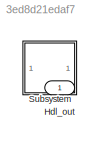
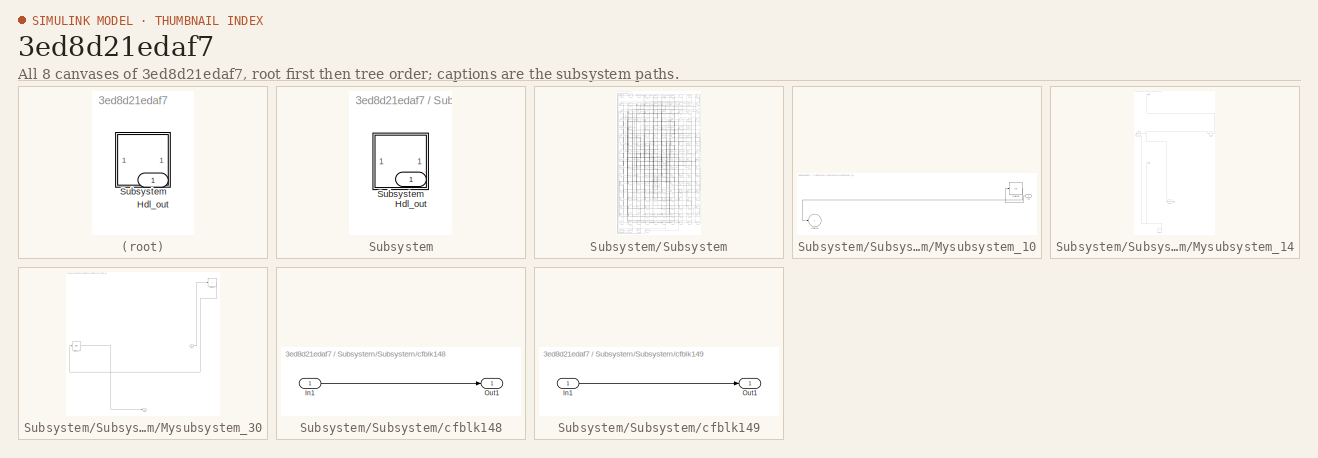
[diagram: thumbnail index - all 8 canvases of the model, root first then tree order]
MODEL slx_3ed8d21edaf7
KIND model
CONFIG AbsTol = auto
CONFIG EnableMultiTasking = off
CONFIG FixedStep = auto
CONFIG MaxStep = auto
CONFIG MinStep = auto
CONFIG RelTol = 1e-3
CONFIG SampleTimeConstraint = Unconstrained
CONFIG SolverName = VariableStepAuto
CONFIG StartTime = 0.0
CONFIG StopTime = 10.0
BLOCK [Outport] Hdl_out
  OutDataTypeStr = uint8
BLOCK [SubSystem] Subsystem
BLOCK [Outport] Subsystem/Hdl_out
  OutDataTypeStr = uint8
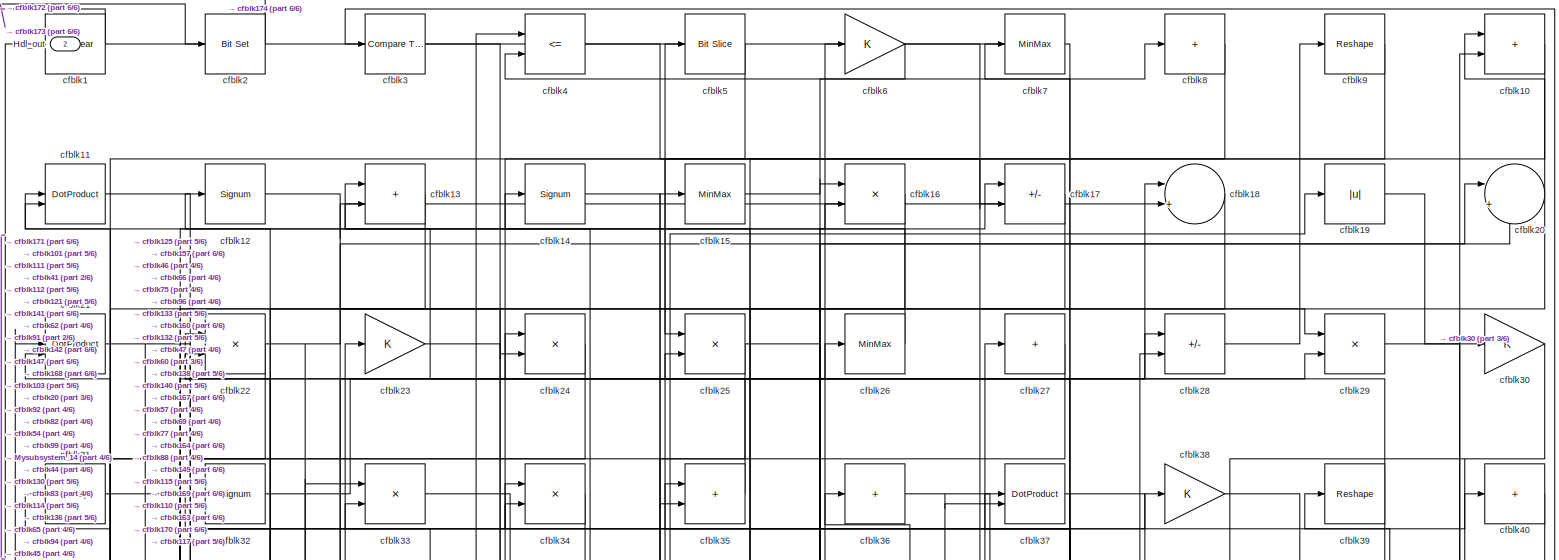
[diagram: Subsystem/Subsystem - part 1/6, full width, top band]
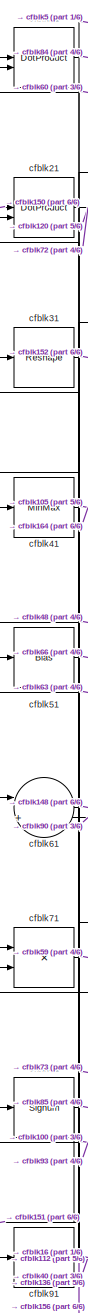
[diagram: Subsystem/Subsystem - part 2/6, top left region]
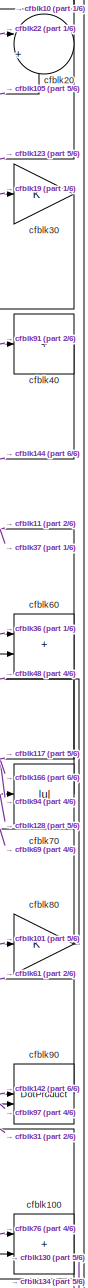
[diagram: Subsystem/Subsystem - part 3/6, top right region]
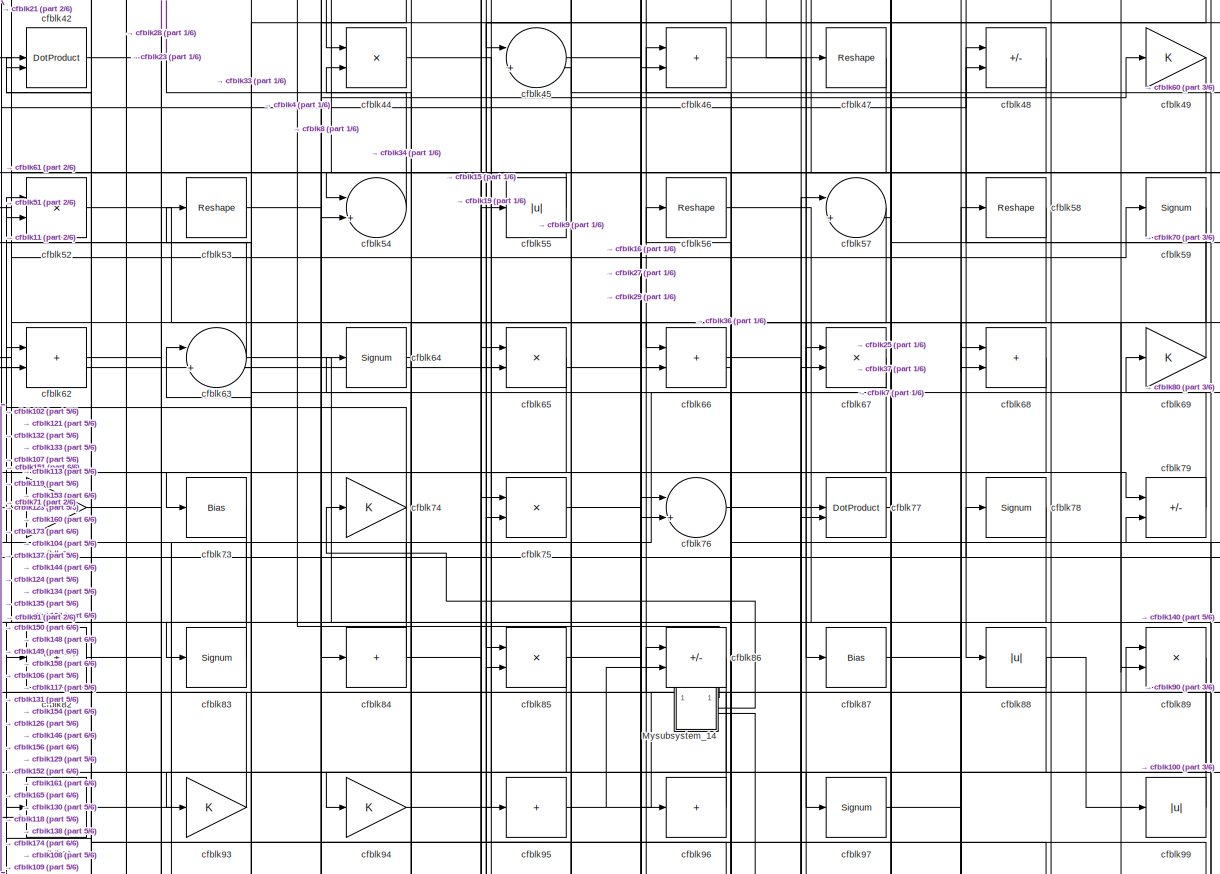
[diagram: Subsystem/Subsystem - part 4/6, full width, middle band]
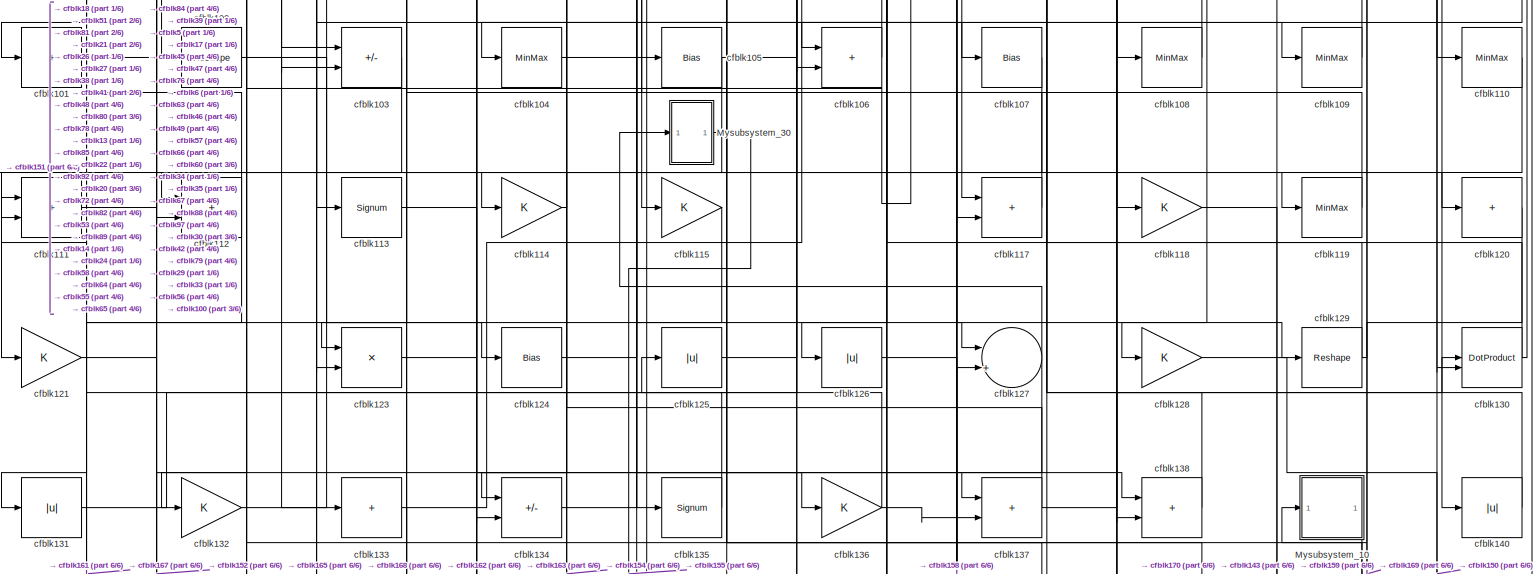
[diagram: Subsystem/Subsystem - part 5/6, full width, bottom band]
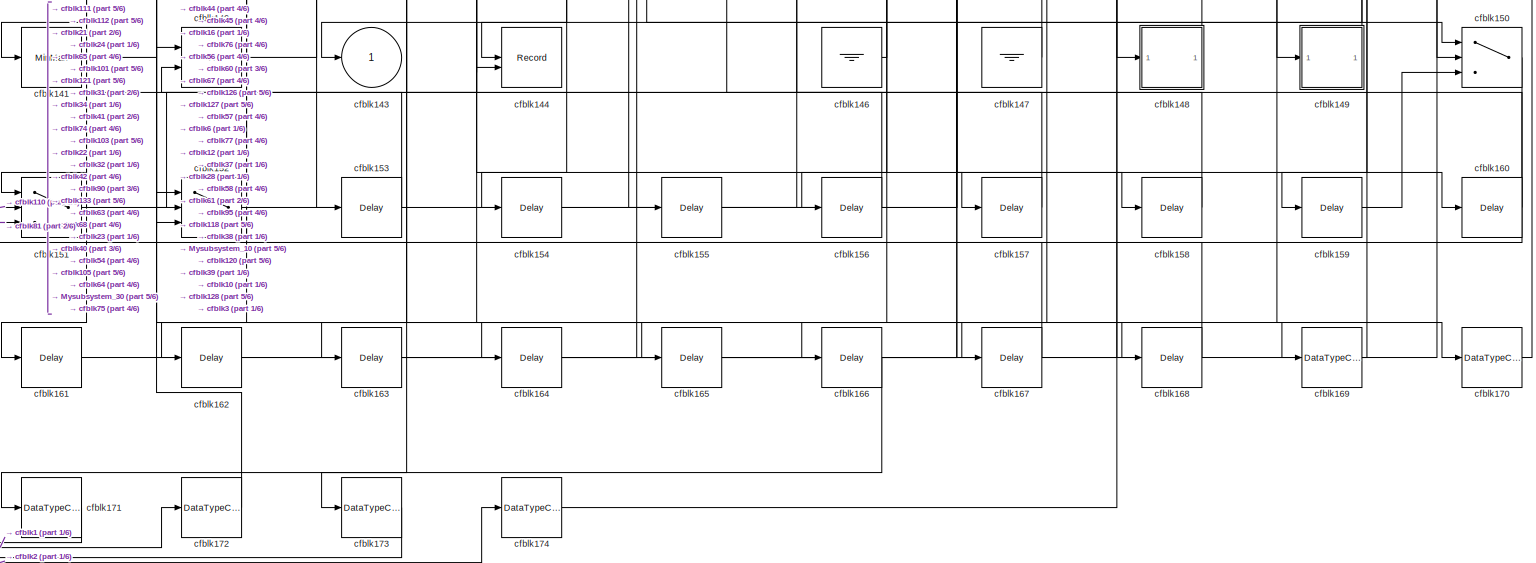
[diagram: Subsystem/Subsystem - part 6/6, full width, bottom band]
BLOCK [SubSystem] Subsystem/Subsystem
BLOCK [Outport] Subsystem/Subsystem/Hdl_out
  OutDataTypeStr = uint8
  Port = 2
BLOCK [SubSystem] Subsystem/Subsystem/Mysubsystem_10
  RTWFcnName = Mysubsystem_10
  RTWFcnNameOpts = User specified
  RTWFileNameOpts = Use function name
  RTWSystemCode = Reusable function
  TreatAsAtomicUnit = on
BLOCK [Inport] Subsystem/Subsystem/Mysubsystem_10/In1
BLOCK [Abs] Subsystem/Subsystem/Mysubsystem_10/cfblk139
  SaturateOnIntegerOverflow = off
BLOCK [Outport] Subsystem/Subsystem/Mysubsystem_10/cfblk143
  VectorParamsAs1DForOutWhenUnconnected = off
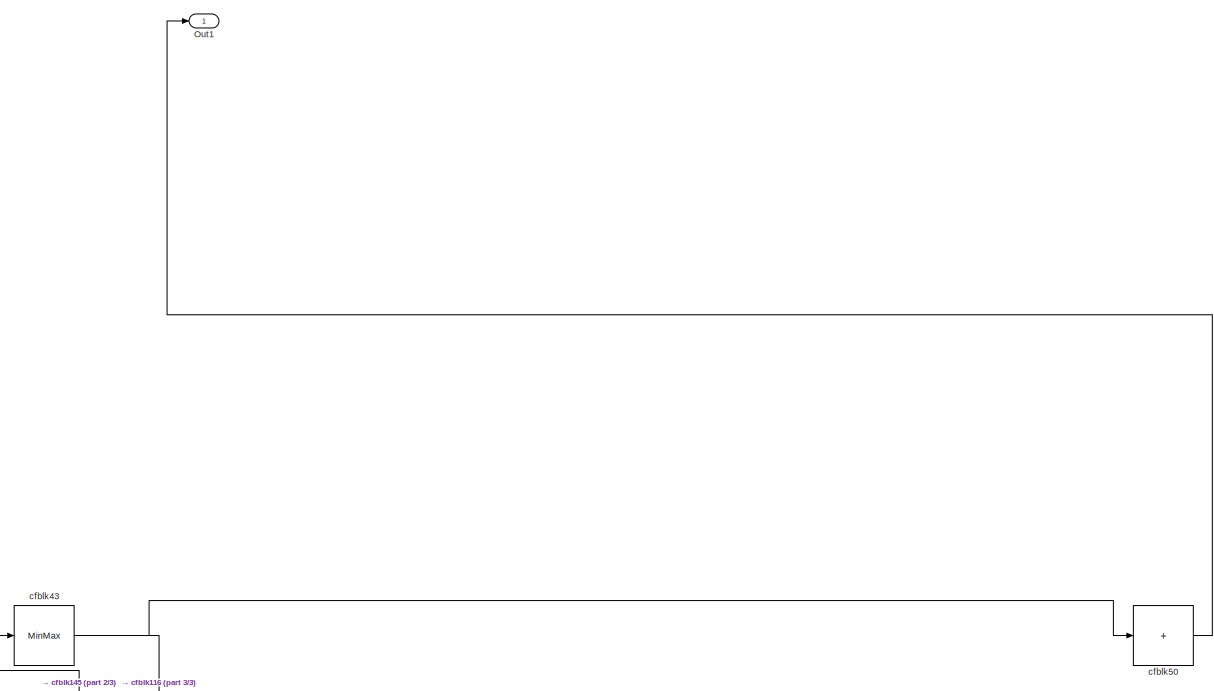
[diagram: Subsystem/Subsystem/Mysubsystem_14 - part 1/3, full width, top band]
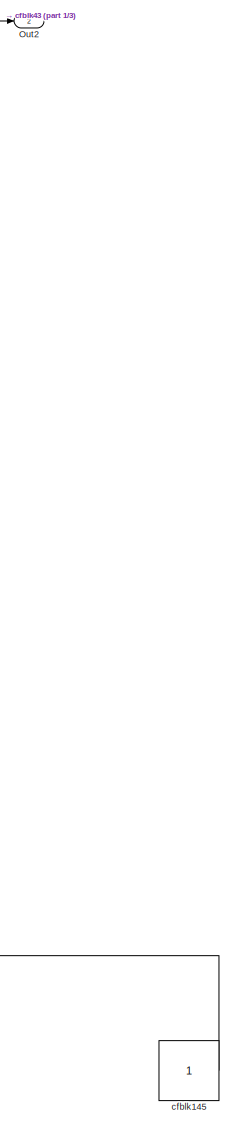
[diagram: Subsystem/Subsystem/Mysubsystem_14 - part 2/3, bottom left region]
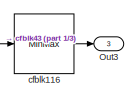
[diagram: Subsystem/Subsystem/Mysubsystem_14 - part 3/3, bottom center region]
BLOCK [SubSystem] Subsystem/Subsystem/Mysubsystem_14
  RTWFcnName = Mysubsystem_14
  RTWFcnNameOpts = User specified
  RTWFileNameOpts = Use function name
  RTWSystemCode = Reusable function
  TreatAsAtomicUnit = on
BLOCK [Outport] Subsystem/Subsystem/Mysubsystem_14/Out1
BLOCK [Outport] Subsystem/Subsystem/Mysubsystem_14/Out2
  Port = 2
BLOCK [Outport] Subsystem/Subsystem/Mysubsystem_14/Out3
  Port = 3
BLOCK [MinMax] Subsystem/Subsystem/Mysubsystem_14/cfblk116
BLOCK [Constant] Subsystem/Subsystem/Mysubsystem_14/cfblk145
  SampleTime = -1
BLOCK [MinMax] Subsystem/Subsystem/Mysubsystem_14/cfblk43
BLOCK [Sum] Subsystem/Subsystem/Mysubsystem_14/cfblk50
  IconShape = rectangular
  Inputs = +
BLOCK [SubSystem] Subsystem/Subsystem/Mysubsystem_30
  RTWFcnName = Mysubsystem_30
  RTWFcnNameOpts = User specified
  RTWFileNameOpts = Use function name
  RTWSystemCode = Reusable function
  TreatAsAtomicUnit = on
BLOCK [Inport] Subsystem/Subsystem/Mysubsystem_30/In1
BLOCK [Outport] Subsystem/Subsystem/Mysubsystem_30/Out1
BLOCK [Bias] Subsystem/Subsystem/Mysubsystem_30/cfblk122
  Bias = 0.0
  SaturateOnIntegerOverflow = off
BLOCK [Sum] Subsystem/Subsystem/Mysubsystem_30/cfblk98
  IconShape = rectangular
  Inputs = +
BLOCK [Reference] Subsystem/Subsystem/cfblk1  REF=simulink/Logic and Bit
Operations/Bit Clear
  LibrarySourceBlock = hdlsllib/Logic and Bit\nOperations/Bit Clear
  SourceBlock = simulink/Logic and Bit\nOperations/Bit Clear
  SourceType = Bit Clear
BLOCK [Sum] Subsystem/Subsystem/cfblk10
  IconShape = rectangular
  OutDataTypeStr = uint8
BLOCK [Sum] Subsystem/Subsystem/cfblk100
  IconShape = rectangular
  OutDataTypeStr = uint8
BLOCK [Sum] Subsystem/Subsystem/cfblk101
  IconShape = rectangular
  Inputs = +
  OutDataTypeStr = uint8
BLOCK [Reshape] Subsystem/Subsystem/cfblk102
BLOCK [Sum] Subsystem/Subsystem/cfblk103
  IconShape = rectangular
  Inputs = +-
  OutDataTypeStr = uint8
BLOCK [MinMax] Subsystem/Subsystem/cfblk104
  OutDataTypeStr = uint8
BLOCK [Bias] Subsystem/Subsystem/cfblk105
  Bias = 0.0
  SaturateOnIntegerOverflow = off
BLOCK [Sum] Subsystem/Subsystem/cfblk106
  IconShape = rectangular
  OutDataTypeStr = uint8
BLOCK [Bias] Subsystem/Subsystem/cfblk107
  Bias = 0.0
  SaturateOnIntegerOverflow = off
BLOCK [MinMax] Subsystem/Subsystem/cfblk108
  OutDataTypeStr = uint8
BLOCK [MinMax] Subsystem/Subsystem/cfblk109
  OutDataTypeStr = uint8
BLOCK [DotProduct] Subsystem/Subsystem/cfblk11
  OutDataTypeStr = uint8
BLOCK [MinMax] Subsystem/Subsystem/cfblk110
  OutDataTypeStr = uint8
BLOCK [Sum] Subsystem/Subsystem/cfblk111
  IconShape = rectangular
  OutDataTypeStr = uint8
BLOCK [Sum] Subsystem/Subsystem/cfblk112
  IconShape = rectangular
  OutDataTypeStr = uint8
BLOCK [Signum] Subsystem/Subsystem/cfblk113
BLOCK [Gain] Subsystem/Subsystem/cfblk114
  OutDataTypeStr = uint8
BLOCK [Gain] Subsystem/Subsystem/cfblk115
  OutDataTypeStr = uint8
BLOCK [Sum] Subsystem/Subsystem/cfblk117
  IconShape = rectangular
  OutDataTypeStr = uint8
BLOCK [Gain] Subsystem/Subsystem/cfblk118
  OutDataTypeStr = uint8
BLOCK [MinMax] Subsystem/Subsystem/cfblk119
  OutDataTypeStr = uint8
BLOCK [Signum] Subsystem/Subsystem/cfblk12
BLOCK [Sum] Subsystem/Subsystem/cfblk120
  IconShape = rectangular
  Inputs = +
  OutDataTypeStr = uint8
BLOCK [Gain] Subsystem/Subsystem/cfblk121
  OutDataTypeStr = uint8
BLOCK [Product] Subsystem/Subsystem/cfblk123
  Inputs = */
  OutDataTypeStr = uint8
  RndMeth = Zero
  SaturateOnIntegerOverflow = on
BLOCK [Bias] Subsystem/Subsystem/cfblk124
  Bias = 0.0
  SaturateOnIntegerOverflow = off
BLOCK [Abs] Subsystem/Subsystem/cfblk125
  OutDataTypeStr = uint8
  SaturateOnIntegerOverflow = off
BLOCK [Abs] Subsystem/Subsystem/cfblk126
  OutDataTypeStr = uint8
  SaturateOnIntegerOverflow = off
BLOCK [Sum] Subsystem/Subsystem/cfblk127
  Inputs = |++
  OutDataTypeStr = uint8
BLOCK [Gain] Subsystem/Subsystem/cfblk128
  OutDataTypeStr = uint8
BLOCK [Reshape] Subsystem/Subsystem/cfblk129
BLOCK [Sum] Subsystem/Subsystem/cfblk13
  IconShape = rectangular
  OutDataTypeStr = uint8
BLOCK [DotProduct] Subsystem/Subsystem/cfblk130
  OutDataTypeStr = uint8
BLOCK [Abs] Subsystem/Subsystem/cfblk131
  OutDataTypeStr = uint8
  SaturateOnIntegerOverflow = off
BLOCK [Gain] Subsystem/Subsystem/cfblk132
  OutDataTypeStr = uint8
BLOCK [Sum] Subsystem/Subsystem/cfblk133
  IconShape = rectangular
  Inputs = +
  OutDataTypeStr = uint8
BLOCK [Sum] Subsystem/Subsystem/cfblk134
  IconShape = rectangular
  Inputs = +-
  OutDataTypeStr = uint8
BLOCK [Signum] Subsystem/Subsystem/cfblk135
BLOCK [Gain] Subsystem/Subsystem/cfblk136
  OutDataTypeStr = uint8
BLOCK [Sum] Subsystem/Subsystem/cfblk137
  IconShape = rectangular
  OutDataTypeStr = uint8
BLOCK [Sum] Subsystem/Subsystem/cfblk138
  IconShape = rectangular
  OutDataTypeStr = uint8
BLOCK [Signum] Subsystem/Subsystem/cfblk14
BLOCK [Abs] Subsystem/Subsystem/cfblk140
  OutDataTypeStr = uint8
  SaturateOnIntegerOverflow = off
BLOCK [MinMax] Subsystem/Subsystem/cfblk141
  OutDataTypeStr = uint8
BLOCK [Product] Subsystem/Subsystem/cfblk142
  Inputs = */
  OutDataTypeStr = uint8
  RndMeth = Zero
  SaturateOnIntegerOverflow = on
BLOCK [Outport] Subsystem/Subsystem/cfblk143
  OutDataTypeStr = uint8
  VectorParamsAs1DForOutWhenUnconnected = off
BLOCK [Record] Subsystem/Subsystem/cfblk144
  CompatibilityTag = XY
  FileSettingsInternal = {"entries":[{"content":{"excelSettings":{"content":{},"type":"Streamout.ExcelSettings"}},"type":"Streamout.FileSettingStorage","uuid":""}],"packageUris":["http:\/\/schema.mathworks.com\/mf0\/streamout_blocks\/R2020a"],"version":"1.0"}
  Layout = [1 1]
  SignalsInternal = {"entries":[{"content":{"signals":[{"content":{"blockPath":[],"dimensions":[1],"domain":"","lineColor":"#a2142f","plots":[1],"port":1,"signalID":30834,"signalName":"cfblk64"},"type":"RecordBlkView.Signal","uuid":""},{"content":{"blockPath":[],"dimensions":[1],"domain":"","lineColor":"#139fff","plots":[1],"port":2,"signalID":30837,"signalName":"cfblk40"},"type":"RecordBlkView.Signal","uuid":""}]},"...<+142ch>
  VisualizationBindings = {"xyplotplugin":{"info":[{"series":[{"bindingParametersList":[{"parameter":"X-Axis","signalID":30834,"signalName":"cfblk64"},{"parameter":"Y-Axis","signalID":30837,"signalName":"cfblk40"}],"seriesID":6663}],"subplotID":1}]}}
  st = -1
BLOCK [Ground] Subsystem/Subsystem/cfblk146
BLOCK [Ground] Subsystem/Subsystem/cfblk147
BLOCK [SubSystem] Subsystem/Subsystem/cfblk148
  LibrarySourceBlock = hdlsllib/Ports &\nSubsystems/Subsystem
BLOCK [Inport] Subsystem/Subsystem/cfblk148/In1
BLOCK [Outport] Subsystem/Subsystem/cfblk148/Out1
BLOCK [SubSystem] Subsystem/Subsystem/cfblk149
  LibrarySourceBlock = hdlsllib/Ports &\nSubsystems/Subsystem
BLOCK [Inport] Subsystem/Subsystem/cfblk149/In1
BLOCK [Outport] Subsystem/Subsystem/cfblk149/Out1
BLOCK [MinMax] Subsystem/Subsystem/cfblk15
  OutDataTypeStr = uint8
BLOCK [Switch] Subsystem/Subsystem/cfblk150
  InputSameDT = off
  OutDataTypeStr = uint8
  SaturateOnIntegerOverflow = off
BLOCK [Switch] Subsystem/Subsystem/cfblk151
  InputSameDT = off
  OutDataTypeStr = uint8
  SaturateOnIntegerOverflow = off
BLOCK [Switch] Subsystem/Subsystem/cfblk152
  InputSameDT = off
  OutDataTypeStr = uint8
  SaturateOnIntegerOverflow = off
BLOCK [Delay] Subsystem/Subsystem/cfblk153
  InputPortMap = u0
  SampleTime = 1
BLOCK [Delay] Subsystem/Subsystem/cfblk154
  InputPortMap = u0
  SampleTime = 1
BLOCK [Delay] Subsystem/Subsystem/cfblk155
  InputPortMap = u0
  SampleTime = 1
BLOCK [Delay] Subsystem/Subsystem/cfblk156
  InputPortMap = u0
  SampleTime = 1
BLOCK [Delay] Subsystem/Subsystem/cfblk157
  InputPortMap = u0
  SampleTime = 1
BLOCK [Delay] Subsystem/Subsystem/cfblk158
  InputPortMap = u0
  SampleTime = 1
BLOCK [Delay] Subsystem/Subsystem/cfblk159
  InputPortMap = u0
  SampleTime = 1
BLOCK [Product] Subsystem/Subsystem/cfblk16
  Inputs = */
  OutDataTypeStr = uint8
  RndMeth = Zero
  SaturateOnIntegerOverflow = on
BLOCK [Delay] Subsystem/Subsystem/cfblk160
  InputPortMap = u0
  SampleTime = 1
BLOCK [Delay] Subsystem/Subsystem/cfblk161
  InputPortMap = u0
  SampleTime = 1
BLOCK [Delay] Subsystem/Subsystem/cfblk162
  InputPortMap = u0
  SampleTime = 1
BLOCK [Delay] Subsystem/Subsystem/cfblk163
  InputPortMap = u0
  SampleTime = 1
BLOCK [Delay] Subsystem/Subsystem/cfblk164
  InputPortMap = u0
  SampleTime = 1
BLOCK [Delay] Subsystem/Subsystem/cfblk165
  InputPortMap = u0
  SampleTime = 1
BLOCK [Delay] Subsystem/Subsystem/cfblk166
  InputPortMap = u0
  SampleTime = 1
BLOCK [Delay] Subsystem/Subsystem/cfblk167
  InputPortMap = u0
  SampleTime = 1
BLOCK [Delay] Subsystem/Subsystem/cfblk168
  InputPortMap = u0
  SampleTime = 1
BLOCK [DataTypeConversion] Subsystem/Subsystem/cfblk169
  OutDataTypeStr = uint8
  RndMeth = Floor
  SaturateOnIntegerOverflow = off
BLOCK [Sum] Subsystem/Subsystem/cfblk17
  IconShape = rectangular
  Inputs = +-
  OutDataTypeStr = uint8
BLOCK [DataTypeConversion] Subsystem/Subsystem/cfblk170
  OutDataTypeStr = uint8
  RndMeth = Floor
  SaturateOnIntegerOverflow = off
BLOCK [DataTypeConversion] Subsystem/Subsystem/cfblk171
  OutDataTypeStr = uint8
  RndMeth = Floor
  SaturateOnIntegerOverflow = off
BLOCK [DataTypeConversion] Subsystem/Subsystem/cfblk172
  OutDataTypeStr = uint8
  RndMeth = Floor
  SaturateOnIntegerOverflow = off
BLOCK [DataTypeConversion] Subsystem/Subsystem/cfblk173
  OutDataTypeStr = uint8
  RndMeth = Floor
  SaturateOnIntegerOverflow = off
BLOCK [DataTypeConversion] Subsystem/Subsystem/cfblk174
  OutDataTypeStr = uint8
  RndMeth = Floor
  SaturateOnIntegerOverflow = off
BLOCK [Sum] Subsystem/Subsystem/cfblk18
  Inputs = |++
  OutDataTypeStr = uint8
BLOCK [Abs] Subsystem/Subsystem/cfblk19
  OutDataTypeStr = uint8
  SaturateOnIntegerOverflow = off
BLOCK [Reference] Subsystem/Subsystem/cfblk2  REF=simulink/Logic and Bit
Operations/Bit Set
  LibrarySourceBlock = hdlsllib/Logic and Bit\nOperations/Bit Set
  SourceBlock = simulink/Logic and Bit\nOperations/Bit Set
  SourceType = Bit Set
BLOCK [Sum] Subsystem/Subsystem/cfblk20
  Inputs = |++
  OutDataTypeStr = uint8
BLOCK [DotProduct] Subsystem/Subsystem/cfblk21
  OutDataTypeStr = uint8
BLOCK [Product] Subsystem/Subsystem/cfblk22
  Inputs = */
  OutDataTypeStr = uint8
  RndMeth = Zero
  SaturateOnIntegerOverflow = on
BLOCK [Gain] Subsystem/Subsystem/cfblk23
  OutDataTypeStr = uint8
BLOCK [Product] Subsystem/Subsystem/cfblk24
  Inputs = */
  OutDataTypeStr = uint8
  RndMeth = Zero
  SaturateOnIntegerOverflow = on
BLOCK [Product] Subsystem/Subsystem/cfblk25
  Inputs = */
  OutDataTypeStr = uint8
  RndMeth = Zero
  SaturateOnIntegerOverflow = on
BLOCK [MinMax] Subsystem/Subsystem/cfblk26
  OutDataTypeStr = uint8
BLOCK [Sum] Subsystem/Subsystem/cfblk27
  IconShape = rectangular
  Inputs = +
  OutDataTypeStr = uint8
BLOCK [Sum] Subsystem/Subsystem/cfblk28
  IconShape = rectangular
  Inputs = +-
  OutDataTypeStr = uint8
BLOCK [Product] Subsystem/Subsystem/cfblk29
  Inputs = */
  OutDataTypeStr = uint8
  RndMeth = Zero
  SaturateOnIntegerOverflow = on
BLOCK [Reference] Subsystem/Subsystem/cfblk3  REF=hdlsllib/Logic and Bit
Operations/Compare
To Zero
  SourceBlock = hdlsllib/Logic and Bit\nOperations/Compare\nTo Zero
  SourceType = Compare To Zero
BLOCK [Gain] Subsystem/Subsystem/cfblk30
  OutDataTypeStr = uint8
BLOCK [Reshape] Subsystem/Subsystem/cfblk31
BLOCK [Signum] Subsystem/Subsystem/cfblk32
BLOCK [Product] Subsystem/Subsystem/cfblk33
  Inputs = */
  OutDataTypeStr = uint8
  RndMeth = Zero
  SaturateOnIntegerOverflow = on
BLOCK [Product] Subsystem/Subsystem/cfblk34
  Inputs = */
  OutDataTypeStr = uint8
  RndMeth = Zero
  SaturateOnIntegerOverflow = on
BLOCK [Sum] Subsystem/Subsystem/cfblk35
  IconShape = rectangular
  OutDataTypeStr = uint8
BLOCK [Sum] Subsystem/Subsystem/cfblk36
  IconShape = rectangular
  Inputs = +
  OutDataTypeStr = uint8
BLOCK [DotProduct] Subsystem/Subsystem/cfblk37
  OutDataTypeStr = uint8
BLOCK [Gain] Subsystem/Subsystem/cfblk38
  OutDataTypeStr = uint8
BLOCK [Reshape] Subsystem/Subsystem/cfblk39
BLOCK [RelationalOperator] Subsystem/Subsystem/cfblk4
  InputSameDT = off
  Operator = <=
  OutDataTypeStr = boolean
BLOCK [Sum] Subsystem/Subsystem/cfblk40
  IconShape = rectangular
  Inputs = +
  OutDataTypeStr = uint8
BLOCK [MinMax] Subsystem/Subsystem/cfblk41
  OutDataTypeStr = uint8
BLOCK [DotProduct] Subsystem/Subsystem/cfblk42
  OutDataTypeStr = uint8
BLOCK [Product] Subsystem/Subsystem/cfblk44
  Inputs = */
  OutDataTypeStr = uint8
  RndMeth = Zero
  SaturateOnIntegerOverflow = on
BLOCK [Sum] Subsystem/Subsystem/cfblk45
  Inputs = |++
  OutDataTypeStr = uint8
BLOCK [Sum] Subsystem/Subsystem/cfblk46
  IconShape = rectangular
  OutDataTypeStr = uint8
BLOCK [Reshape] Subsystem/Subsystem/cfblk47
BLOCK [Sum] Subsystem/Subsystem/cfblk48
  IconShape = rectangular
  Inputs = +-
  OutDataTypeStr = uint8
BLOCK [Gain] Subsystem/Subsystem/cfblk49
  OutDataTypeStr = uint8
BLOCK [Reference] Subsystem/Subsystem/cfblk5  REF=hdlsllib/Logic and Bit
Operations/Bit Slice
  SourceBlock = hdlsllib/Logic and Bit\nOperations/Bit Slice
  SourceType = Bit Slice
BLOCK [Bias] Subsystem/Subsystem/cfblk51
  Bias = 0.0
  SaturateOnIntegerOverflow = off
BLOCK [Product] Subsystem/Subsystem/cfblk52
  Inputs = */
  OutDataTypeStr = uint8
  RndMeth = Zero
  SaturateOnIntegerOverflow = on
BLOCK [Reshape] Subsystem/Subsystem/cfblk53
BLOCK [Sum] Subsystem/Subsystem/cfblk54
  Inputs = |++
  OutDataTypeStr = uint8
BLOCK [Abs] Subsystem/Subsystem/cfblk55
  OutDataTypeStr = uint8
  SaturateOnIntegerOverflow = off
BLOCK [Reshape] Subsystem/Subsystem/cfblk56
BLOCK [Sum] Subsystem/Subsystem/cfblk57
  Inputs = |++
  OutDataTypeStr = uint8
BLOCK [Reshape] Subsystem/Subsystem/cfblk58
BLOCK [Signum] Subsystem/Subsystem/cfblk59
BLOCK [Gain] Subsystem/Subsystem/cfblk6
  OutDataTypeStr = uint8
BLOCK [Sum] Subsystem/Subsystem/cfblk60
  IconShape = rectangular
  OutDataTypeStr = uint8
BLOCK [Sum] Subsystem/Subsystem/cfblk61
  Inputs = |++
  OutDataTypeStr = uint8
BLOCK [Sum] Subsystem/Subsystem/cfblk62
  IconShape = rectangular
  OutDataTypeStr = uint8
BLOCK [Sum] Subsystem/Subsystem/cfblk63
  Inputs = |++
  OutDataTypeStr = uint8
BLOCK [Signum] Subsystem/Subsystem/cfblk64
BLOCK [Product] Subsystem/Subsystem/cfblk65
  Inputs = */
  OutDataTypeStr = uint8
  RndMeth = Zero
  SaturateOnIntegerOverflow = on
BLOCK [Sum] Subsystem/Subsystem/cfblk66
  IconShape = rectangular
  OutDataTypeStr = uint8
BLOCK [Product] Subsystem/Subsystem/cfblk67
  Inputs = */
  OutDataTypeStr = uint8
  RndMeth = Zero
  SaturateOnIntegerOverflow = on
BLOCK [Sum] Subsystem/Subsystem/cfblk68
  IconShape = rectangular
  OutDataTypeStr = uint8
BLOCK [Gain] Subsystem/Subsystem/cfblk69
  OutDataTypeStr = uint8
BLOCK [MinMax] Subsystem/Subsystem/cfblk7
  OutDataTypeStr = uint8
BLOCK [Abs] Subsystem/Subsystem/cfblk70
  OutDataTypeStr = uint8
  SaturateOnIntegerOverflow = off
BLOCK [Product] Subsystem/Subsystem/cfblk71
  Inputs = */
  OutDataTypeStr = uint8
  RndMeth = Zero
  SaturateOnIntegerOverflow = on
BLOCK [Gain] Subsystem/Subsystem/cfblk72
  OutDataTypeStr = uint8
BLOCK [Bias] Subsystem/Subsystem/cfblk73
  Bias = 0.0
  SaturateOnIntegerOverflow = off
BLOCK [Gain] Subsystem/Subsystem/cfblk74
  OutDataTypeStr = uint8
BLOCK [Product] Subsystem/Subsystem/cfblk75
  Inputs = */
  OutDataTypeStr = uint8
  RndMeth = Zero
  SaturateOnIntegerOverflow = on
BLOCK [Sum] Subsystem/Subsystem/cfblk76
  Inputs = |++
  OutDataTypeStr = uint8
BLOCK [DotProduct] Subsystem/Subsystem/cfblk77
  OutDataTypeStr = uint8
BLOCK [Signum] Subsystem/Subsystem/cfblk78
BLOCK [Sum] Subsystem/Subsystem/cfblk79
  IconShape = rectangular
  Inputs = +-
  OutDataTypeStr = uint8
BLOCK [Sum] Subsystem/Subsystem/cfblk8
  IconShape = rectangular
  Inputs = +
  OutDataTypeStr = uint8
BLOCK [Gain] Subsystem/Subsystem/cfblk80
  OutDataTypeStr = uint8
BLOCK [Signum] Subsystem/Subsystem/cfblk81
BLOCK [Sum] Subsystem/Subsystem/cfblk82
  IconShape = rectangular
  Inputs = +
  OutDataTypeStr = uint8
BLOCK [Signum] Subsystem/Subsystem/cfblk83
BLOCK [Sum] Subsystem/Subsystem/cfblk84
  IconShape = rectangular
  Inputs = +
  OutDataTypeStr = uint8
BLOCK [Product] Subsystem/Subsystem/cfblk85
  Inputs = */
  OutDataTypeStr = uint8
  RndMeth = Zero
  SaturateOnIntegerOverflow = on
BLOCK [Sum] Subsystem/Subsystem/cfblk86
  IconShape = rectangular
  Inputs = +-
  OutDataTypeStr = uint8
BLOCK [Bias] Subsystem/Subsystem/cfblk87
  Bias = 0.0
  SaturateOnIntegerOverflow = off
BLOCK [Abs] Subsystem/Subsystem/cfblk88
  OutDataTypeStr = uint8
  SaturateOnIntegerOverflow = off
BLOCK [Product] Subsystem/Subsystem/cfblk89
  Inputs = */
  OutDataTypeStr = uint8
  RndMeth = Zero
  SaturateOnIntegerOverflow = on
BLOCK [Reshape] Subsystem/Subsystem/cfblk9
BLOCK [DotProduct] Subsystem/Subsystem/cfblk90
  OutDataTypeStr = uint8
BLOCK [Reshape] Subsystem/Subsystem/cfblk91
BLOCK [DotProduct] Subsystem/Subsystem/cfblk92
  OutDataTypeStr = uint8
BLOCK [Gain] Subsystem/Subsystem/cfblk93
  OutDataTypeStr = uint8
BLOCK [Gain] Subsystem/Subsystem/cfblk94
  OutDataTypeStr = uint8
BLOCK [Sum] Subsystem/Subsystem/cfblk95
  IconShape = rectangular
  Inputs = +
  OutDataTypeStr = uint8
BLOCK [Sum] Subsystem/Subsystem/cfblk96
  IconShape = rectangular
  Inputs = +
  OutDataTypeStr = uint8
BLOCK [Signum] Subsystem/Subsystem/cfblk97
BLOCK [Abs] Subsystem/Subsystem/cfblk99
  OutDataTypeStr = uint8
  SaturateOnIntegerOverflow = off
LINE Subsystem/Subsystem/Mysubsystem_10/In1:1 -> Subsystem/Subsystem/Mysubsystem_10/cfblk139:1
LINE Subsystem/Subsystem/Mysubsystem_10/cfblk139:1 -> Subsystem/Subsystem/Mysubsystem_10/cfblk143:1
LINE Subsystem/Subsystem/Mysubsystem_10:1 -> Subsystem/Subsystem/cfblk143:1
LINE Subsystem/Subsystem/Mysubsystem_14/cfblk116:1 -> Subsystem/Subsystem/Mysubsystem_14/Out3:1
NET Subsystem/Subsystem/Mysubsystem_14/cfblk145:1 -> Subsystem/Subsystem/Mysubsystem_14/Out2:1, Subsystem/Subsystem/Mysubsystem_14/cfblk43:1
NET Subsystem/Subsystem/Mysubsystem_14/cfblk43:1 -> Subsystem/Subsystem/Mysubsystem_14/cfblk116:1, Subsystem/Subsystem/Mysubsystem_14/cfblk50:1
LINE Subsystem/Subsystem/Mysubsystem_14/cfblk50:1 -> Subsystem/Subsystem/Mysubsystem_14/Out1:1
LINE Subsystem/Subsystem/Mysubsystem_14:1 -> Subsystem/Subsystem/cfblk4:1
LINE Subsystem/Subsystem/Mysubsystem_14:2 -> Subsystem/Subsystem/cfblk74:1
NET Subsystem/Subsystem/Mysubsystem_14:3 -> Subsystem/Subsystem/cfblk36:1, Subsystem/Subsystem/cfblk92:1
LINE Subsystem/Subsystem/Mysubsystem_30/In1:1 -> Subsystem/Subsystem/Mysubsystem_30/cfblk98:1
LINE Subsystem/Subsystem/Mysubsystem_30/cfblk122:1 -> Subsystem/Subsystem/Mysubsystem_30/Out1:1
LINE Subsystem/Subsystem/Mysubsystem_30/cfblk98:1 -> Subsystem/Subsystem/Mysubsystem_30/cfblk122:1
LINE Subsystem/Subsystem/Mysubsystem_30:1 -> Subsystem/Subsystem/cfblk155:1
NET Subsystem/Subsystem/cfblk100:1 -> Subsystem/Subsystem/cfblk134:1, Subsystem/Subsystem/cfblk31:1
NET Subsystem/Subsystem/cfblk101:1 -> Subsystem/Subsystem/cfblk168:1, Subsystem/Subsystem/cfblk80:1
NET Subsystem/Subsystem/cfblk102:1 -> Subsystem/Subsystem/cfblk103:2, Subsystem/Subsystem/cfblk124:1
LINE Subsystem/Subsystem/cfblk103:1 -> Subsystem/Subsystem/cfblk162:1
LINE Subsystem/Subsystem/cfblk104:1 -> Subsystem/Subsystem/cfblk127:1
NET Subsystem/Subsystem/cfblk105:1 -> Subsystem/Subsystem/cfblk154:1, Subsystem/Subsystem/cfblk20:2
LINE Subsystem/Subsystem/cfblk106:1 -> Subsystem/Subsystem/cfblk63:1
LINE Subsystem/Subsystem/cfblk107:1 -> Subsystem/Subsystem/cfblk121:1
LINE Subsystem/Subsystem/cfblk108:1 -> Subsystem/Subsystem/cfblk82:1
LINE Subsystem/Subsystem/cfblk109:1 -> Subsystem/Subsystem/cfblk42:1
LINE Subsystem/Subsystem/cfblk10:1 -> Subsystem/Subsystem/cfblk25:1
LINE Subsystem/Subsystem/cfblk110:1 -> Subsystem/Subsystem/cfblk151:2
LINE Subsystem/Subsystem/cfblk111:1 -> Subsystem/Subsystem/cfblk38:1
NET Subsystem/Subsystem/cfblk112:1 -> Subsystem/Subsystem/cfblk161:1, Subsystem/Subsystem/cfblk51:1
LINE Subsystem/Subsystem/cfblk113:1 -> Subsystem/Subsystem/cfblk138:1
NET Subsystem/Subsystem/cfblk114:1 -> Subsystem/Subsystem/cfblk14:1, Subsystem/Subsystem/cfblk24:1
LINE Subsystem/Subsystem/cfblk115:1 -> Subsystem/Subsystem/cfblk131:1
LINE Subsystem/Subsystem/cfblk117:1 -> Subsystem/Subsystem/cfblk5:1
LINE Subsystem/Subsystem/cfblk118:1 -> Subsystem/Subsystem/cfblk170:1
LINE Subsystem/Subsystem/cfblk119:1 -> Subsystem/Subsystem/cfblk53:1
LINE Subsystem/Subsystem/cfblk11:1 -> Subsystem/Subsystem/cfblk84:1
LINE Subsystem/Subsystem/cfblk120:1 -> Subsystem/Subsystem/cfblk159:1
NET Subsystem/Subsystem/cfblk121:1 -> Subsystem/Subsystem/cfblk165:1, Subsystem/Subsystem/cfblk26:1, Subsystem/Subsystem/cfblk48:2
LINE Subsystem/Subsystem/cfblk123:1 -> Subsystem/Subsystem/cfblk49:1
LINE Subsystem/Subsystem/cfblk124:1 -> Subsystem/Subsystem/cfblk65:1
LINE Subsystem/Subsystem/cfblk125:1 -> Subsystem/Subsystem/cfblk17:1
LINE Subsystem/Subsystem/cfblk126:1 -> Subsystem/Subsystem/cfblk158:1
NET Subsystem/Subsystem/cfblk127:1 -> Subsystem/Subsystem/Mysubsystem_30:1, Subsystem/Subsystem/cfblk137:1, Subsystem/Subsystem/cfblk152:3
LINE Subsystem/Subsystem/cfblk128:1 -> Subsystem/Subsystem/cfblk150:2
NET Subsystem/Subsystem/cfblk129:1 -> Subsystem/Subsystem/cfblk46:1, Subsystem/Subsystem/cfblk79:2
NET Subsystem/Subsystem/cfblk12:1 -> Subsystem/Subsystem/cfblk18:2, Subsystem/Subsystem/cfblk24:2
NET Subsystem/Subsystem/cfblk130:1 -> Subsystem/Subsystem/cfblk100:2, Subsystem/Subsystem/cfblk67:1
LINE Subsystem/Subsystem/cfblk131:1 -> Subsystem/Subsystem/cfblk76:1
LINE Subsystem/Subsystem/cfblk132:1 -> Subsystem/Subsystem/cfblk27:1
NET Subsystem/Subsystem/cfblk133:1 -> Subsystem/Subsystem/cfblk163:1, Subsystem/Subsystem/cfblk6:1
LINE Subsystem/Subsystem/cfblk134:1 -> Subsystem/Subsystem/cfblk55:1
LINE Subsystem/Subsystem/cfblk135:1 -> Subsystem/Subsystem/cfblk125:1
NET Subsystem/Subsystem/cfblk136:1 -> Subsystem/Subsystem/cfblk137:2, Subsystem/Subsystem/cfblk81:1
NET Subsystem/Subsystem/cfblk137:1 -> Subsystem/Subsystem/cfblk130:1, Subsystem/Subsystem/cfblk64:1
LINE Subsystem/Subsystem/cfblk138:1 -> Subsystem/Subsystem/cfblk34:1
LINE Subsystem/Subsystem/cfblk13:1 -> Subsystem/Subsystem/cfblk112:1
LINE Subsystem/Subsystem/cfblk140:1 -> Subsystem/Subsystem/cfblk35:1
LINE Subsystem/Subsystem/cfblk141:1 -> Subsystem/Subsystem/cfblk34:2
NET Subsystem/Subsystem/cfblk142:1 -> Subsystem/Subsystem/cfblk32:1, Subsystem/Subsystem/cfblk90:1
LINE Subsystem/Subsystem/cfblk146:1 -> Subsystem/Subsystem/cfblk56:1
LINE Subsystem/Subsystem/cfblk147:1 -> Subsystem/Subsystem/cfblk12:1
LINE Subsystem/Subsystem/cfblk148/In1:1 -> Subsystem/Subsystem/cfblk148/Out1:1
LINE Subsystem/Subsystem/cfblk148:1 -> Subsystem/Subsystem/cfblk95:1
LINE Subsystem/Subsystem/cfblk149/In1:1 -> Subsystem/Subsystem/cfblk149/Out1:1
LINE Subsystem/Subsystem/cfblk149:1 -> Subsystem/Subsystem/cfblk75:2
NET Subsystem/Subsystem/cfblk14:1 -> Subsystem/Subsystem/cfblk136:1, Subsystem/Subsystem/cfblk35:2
LINE Subsystem/Subsystem/cfblk150:1 -> Subsystem/Subsystem/cfblk21:1
LINE Subsystem/Subsystem/cfblk151:1 -> Subsystem/Subsystem/cfblk54:2
LINE Subsystem/Subsystem/cfblk152:1 -> Subsystem/Subsystem/cfblk67:2
LINE Subsystem/Subsystem/cfblk153:1 -> Subsystem/Subsystem/cfblk142:2
LINE Subsystem/Subsystem/cfblk154:1 -> Subsystem/Subsystem/cfblk76:2
LINE Subsystem/Subsystem/cfblk155:1 -> Subsystem/Subsystem/cfblk127:2
LINE Subsystem/Subsystem/cfblk156:1 -> Subsystem/Subsystem/cfblk21:2
LINE Subsystem/Subsystem/cfblk157:1 -> Subsystem/Subsystem/cfblk16:1
LINE Subsystem/Subsystem/cfblk158:1 -> Subsystem/Subsystem/cfblk45:2
LINE Subsystem/Subsystem/cfblk159:1 -> Subsystem/Subsystem/cfblk150:3
LINE Subsystem/Subsystem/cfblk15:1 -> Subsystem/Subsystem/cfblk8:1
LINE Subsystem/Subsystem/cfblk160:1 -> Subsystem/Subsystem/cfblk63:2
LINE Subsystem/Subsystem/cfblk161:1 -> Subsystem/Subsystem/cfblk77:2
LINE Subsystem/Subsystem/cfblk162:1 -> Subsystem/Subsystem/cfblk75:1
LINE Subsystem/Subsystem/cfblk163:1 -> Subsystem/Subsystem/cfblk10:2
LINE Subsystem/Subsystem/cfblk164:1 -> Subsystem/Subsystem/cfblk28:2
LINE Subsystem/Subsystem/cfblk165:1 -> Subsystem/Subsystem/cfblk57:1
LINE Subsystem/Subsystem/cfblk166:1 -> Subsystem/Subsystem/cfblk171:1
LINE Subsystem/Subsystem/cfblk167:1 -> Subsystem/Subsystem/cfblk111:2
LINE Subsystem/Subsystem/cfblk168:1 -> Subsystem/Subsystem/cfblk22:2
NET Subsystem/Subsystem/cfblk169:1 -> Subsystem/Subsystem/Mysubsystem_10:1, Subsystem/Subsystem/cfblk39:1
NET Subsystem/Subsystem/cfblk16:1 -> Subsystem/Subsystem/cfblk46:2, Subsystem/Subsystem/cfblk62:2
LINE Subsystem/Subsystem/cfblk170:1 -> Subsystem/Subsystem/cfblk3:1
LINE Subsystem/Subsystem/cfblk171:1 -> Subsystem/Subsystem/cfblk1:1
LINE Subsystem/Subsystem/cfblk172:1 -> Subsystem/Subsystem/cfblk142:1
LINE Subsystem/Subsystem/cfblk173:1 -> Subsystem/Subsystem/cfblk2:1
LINE Subsystem/Subsystem/cfblk174:1 -> Subsystem/Subsystem/cfblk58:1
LINE Subsystem/Subsystem/cfblk17:1 -> Subsystem/Subsystem/cfblk114:1
LINE Subsystem/Subsystem/cfblk18:1 -> Subsystem/Subsystem/cfblk111:1
LINE Subsystem/Subsystem/cfblk19:1 -> Subsystem/Subsystem/cfblk30:1
LINE Subsystem/Subsystem/cfblk1:1 -> Subsystem/Subsystem/cfblk172:1
NET Subsystem/Subsystem/cfblk20:1 -> Subsystem/Subsystem/cfblk10:1, Subsystem/Subsystem/cfblk123:2
NET Subsystem/Subsystem/cfblk21:1 -> Subsystem/Subsystem/cfblk120:1, Subsystem/Subsystem/cfblk72:1, Subsystem/Subsystem/cfblk73:1
NET Subsystem/Subsystem/cfblk22:1 -> Subsystem/Subsystem/cfblk101:1, Subsystem/Subsystem/cfblk103:1, Subsystem/Subsystem/cfblk20:1
LINE Subsystem/Subsystem/cfblk23:1 -> Subsystem/Subsystem/cfblk157:1
LINE Subsystem/Subsystem/cfblk24:1 -> Subsystem/Subsystem/cfblk141:1
NET Subsystem/Subsystem/cfblk25:1 -> Subsystem/Subsystem/cfblk65:2, Subsystem/Subsystem/cfblk96:1
LINE Subsystem/Subsystem/cfblk26:1 -> Subsystem/Subsystem/cfblk13:2
NET Subsystem/Subsystem/cfblk27:1 -> Subsystem/Subsystem/cfblk112:2, Subsystem/Subsystem/cfblk66:2
LINE Subsystem/Subsystem/cfblk28:1 -> Subsystem/Subsystem/cfblk9:1
LINE Subsystem/Subsystem/cfblk29:1 -> Subsystem/Subsystem/cfblk110:1
LINE Subsystem/Subsystem/cfblk2:1 -> Subsystem/Subsystem/cfblk174:1
NET Subsystem/Subsystem/cfblk30:1 -> Subsystem/Subsystem/cfblk128:1, Subsystem/Subsystem/cfblk70:1
LINE Subsystem/Subsystem/cfblk31:1 -> Subsystem/Subsystem/cfblk152:1
LINE Subsystem/Subsystem/cfblk32:1 -> Subsystem/Subsystem/cfblk18:1
LINE Subsystem/Subsystem/cfblk33:1 -> Subsystem/Subsystem/cfblk130:2
LINE Subsystem/Subsystem/cfblk34:1 -> Subsystem/Subsystem/cfblk83:1
LINE Subsystem/Subsystem/cfblk35:1 -> Subsystem/Subsystem/cfblk13:1
NET Subsystem/Subsystem/cfblk36:1 -> Subsystem/Subsystem/cfblk37:2, Subsystem/Subsystem/cfblk47:1, Subsystem/Subsystem/cfblk60:1
NET Subsystem/Subsystem/cfblk37:1 -> Subsystem/Subsystem/cfblk167:1, Subsystem/Subsystem/cfblk88:1
LINE Subsystem/Subsystem/cfblk38:1 -> Subsystem/Subsystem/cfblk149:1
NET Subsystem/Subsystem/cfblk39:1 -> Subsystem/Subsystem/cfblk115:1, Subsystem/Subsystem/cfblk22:1
LINE Subsystem/Subsystem/cfblk3:1 -> Subsystem/Subsystem/cfblk169:1
LINE Subsystem/Subsystem/cfblk40:1 -> Subsystem/Subsystem/cfblk144:2
NET Subsystem/Subsystem/cfblk41:1 -> Subsystem/Subsystem/cfblk105:1, Subsystem/Subsystem/cfblk164:1
LINE Subsystem/Subsystem/cfblk42:1 -> Subsystem/Subsystem/cfblk153:1
LINE Subsystem/Subsystem/cfblk44:1 -> Subsystem/Subsystem/cfblk150:1
LINE Subsystem/Subsystem/cfblk45:1 -> Subsystem/Subsystem/cfblk117:2
LINE Subsystem/Subsystem/cfblk46:1 -> Subsystem/Subsystem/cfblk87:1
LINE Subsystem/Subsystem/cfblk47:1 -> Subsystem/Subsystem/cfblk106:2
NET Subsystem/Subsystem/cfblk48:1 -> Subsystem/Subsystem/cfblk134:2, Subsystem/Subsystem/cfblk61:1
LINE Subsystem/Subsystem/cfblk49:1 -> Subsystem/Subsystem/cfblk126:1
LINE Subsystem/Subsystem/cfblk4:1 -> Subsystem/Subsystem/cfblk17:2
LINE Subsystem/Subsystem/cfblk51:1 -> Subsystem/Subsystem/cfblk66:1
LINE Subsystem/Subsystem/cfblk52:1 -> Subsystem/Subsystem/cfblk89:2
LINE Subsystem/Subsystem/cfblk53:1 -> Subsystem/Subsystem/cfblk109:1
LINE Subsystem/Subsystem/cfblk54:1 -> Subsystem/Subsystem/cfblk23:1
LINE Subsystem/Subsystem/cfblk55:1 -> Subsystem/Subsystem/cfblk54:1
LINE Subsystem/Subsystem/cfblk56:1 -> Subsystem/Subsystem/cfblk140:1
LINE Subsystem/Subsystem/cfblk57:1 -> Subsystem/Subsystem/cfblk106:1
LINE Subsystem/Subsystem/cfblk58:1 -> Subsystem/Subsystem/cfblk104:1
LINE Subsystem/Subsystem/cfblk59:1 -> Subsystem/Subsystem/cfblk68:2
LINE Subsystem/Subsystem/cfblk5:1 -> Subsystem/Subsystem/cfblk41:1
NET Subsystem/Subsystem/cfblk60:1 -> Subsystem/Subsystem/cfblk117:1, Subsystem/Subsystem/cfblk11:1, Subsystem/Subsystem/cfblk166:1, Subsystem/Subsystem/cfblk37:1, Subsystem/Subsystem/cfblk94:1
LINE Subsystem/Subsystem/cfblk61:1 -> Subsystem/Subsystem/cfblk148:1
NET Subsystem/Subsystem/cfblk62:1 -> Subsystem/Subsystem/cfblk42:2, Subsystem/Subsystem/cfblk79:1
NET Subsystem/Subsystem/cfblk63:1 -> Subsystem/Subsystem/cfblk108:1, Subsystem/Subsystem/cfblk11:2
LINE Subsystem/Subsystem/cfblk64:1 -> Subsystem/Subsystem/cfblk144:1
LINE Subsystem/Subsystem/cfblk65:1 -> Subsystem/Subsystem/cfblk151:1
LINE Subsystem/Subsystem/cfblk66:1 -> Subsystem/Subsystem/cfblk129:1
LINE Subsystem/Subsystem/cfblk67:1 -> Subsystem/Subsystem/cfblk156:1
LINE Subsystem/Subsystem/cfblk68:1 -> Subsystem/Subsystem/cfblk173:1
LINE Subsystem/Subsystem/cfblk69:1 -> Subsystem/Subsystem/cfblk25:2
NET Subsystem/Subsystem/cfblk6:1 -> Subsystem/Subsystem/cfblk160:1, Subsystem/Subsystem/cfblk29:1, Subsystem/Subsystem/cfblk4:2
LINE Subsystem/Subsystem/cfblk70:1 -> Subsystem/Subsystem/cfblk48:1
LINE Subsystem/Subsystem/cfblk71:1 -> Subsystem/Subsystem/cfblk59:1
LINE Subsystem/Subsystem/cfblk72:1 -> Subsystem/Subsystem/cfblk113:1
LINE Subsystem/Subsystem/cfblk73:1 -> Subsystem/Subsystem/cfblk91:1
NET Subsystem/Subsystem/cfblk74:1 -> Subsystem/Subsystem/cfblk152:2, Subsystem/Subsystem/cfblk62:1
NET Subsystem/Subsystem/cfblk75:1 -> Subsystem/Subsystem/cfblk29:2, Subsystem/Subsystem/cfblk97:1
NET Subsystem/Subsystem/cfblk76:1 -> Subsystem/Subsystem/cfblk100:1, Subsystem/Subsystem/cfblk77:1
LINE Subsystem/Subsystem/cfblk77:1 -> Subsystem/Subsystem/cfblk7:1
LINE Subsystem/Subsystem/cfblk78:1 -> Subsystem/Subsystem/cfblk102:1
LINE Subsystem/Subsystem/cfblk79:1 -> Subsystem/Subsystem/cfblk52:2
NET Subsystem/Subsystem/cfblk7:1 -> Subsystem/Subsystem/Hdl_out:1, Subsystem/Subsystem/cfblk57:2
NET Subsystem/Subsystem/cfblk80:1 -> Subsystem/Subsystem/cfblk60:2, Subsystem/Subsystem/cfblk69:1
NET Subsystem/Subsystem/cfblk81:1 -> Subsystem/Subsystem/cfblk151:3, Subsystem/Subsystem/cfblk85:1
NET Subsystem/Subsystem/cfblk82:1 -> Subsystem/Subsystem/cfblk107:1, Subsystem/Subsystem/cfblk119:1, Subsystem/Subsystem/cfblk28:1
LINE Subsystem/Subsystem/cfblk83:1 -> Subsystem/Subsystem/cfblk52:1
NET Subsystem/Subsystem/cfblk84:1 -> Subsystem/Subsystem/cfblk135:1, Subsystem/Subsystem/cfblk71:2
NET Subsystem/Subsystem/cfblk85:1 -> Subsystem/Subsystem/cfblk132:1, Subsystem/Subsystem/cfblk78:1
LINE Subsystem/Subsystem/cfblk86:1 -> Subsystem/Subsystem/cfblk92:2
LINE Subsystem/Subsystem/cfblk87:1 -> Subsystem/Subsystem/cfblk68:1
NET Subsystem/Subsystem/cfblk88:1 -> Subsystem/Subsystem/cfblk138:2, Subsystem/Subsystem/cfblk99:1
LINE Subsystem/Subsystem/cfblk89:1 -> Subsystem/Subsystem/cfblk123:1
LINE Subsystem/Subsystem/cfblk8:1 -> Subsystem/Subsystem/cfblk44:1
LINE Subsystem/Subsystem/cfblk90:1 -> Subsystem/Subsystem/cfblk61:2
NET Subsystem/Subsystem/cfblk91:1 -> Subsystem/Subsystem/cfblk16:2, Subsystem/Subsystem/cfblk40:1
NET Subsystem/Subsystem/cfblk92:1 -> Subsystem/Subsystem/cfblk133:1, Subsystem/Subsystem/cfblk15:1, Subsystem/Subsystem/cfblk33:1, Subsystem/Subsystem/cfblk85:2
LINE Subsystem/Subsystem/cfblk93:1 -> Subsystem/Subsystem/cfblk71:1
LINE Subsystem/Subsystem/cfblk94:1 -> Subsystem/Subsystem/cfblk19:1
NET Subsystem/Subsystem/cfblk95:1 -> Subsystem/Subsystem/cfblk86:2, Subsystem/Subsystem/cfblk89:1
NET Subsystem/Subsystem/cfblk96:1 -> Subsystem/Subsystem/cfblk44:2, Subsystem/Subsystem/cfblk86:1
NET Subsystem/Subsystem/cfblk97:1 -> Subsystem/Subsystem/cfblk118:1, Subsystem/Subsystem/cfblk90:2
NET Subsystem/Subsystem/cfblk99:1 -> Subsystem/Subsystem/cfblk33:2, Subsystem/Subsystem/cfblk93:1
LINE Subsystem/Subsystem/cfblk9:1 -> Subsystem/Subsystem/cfblk45:1
note: NET lines group one-source signal fan-out (src -> all destinations, sorted); 1:1 wires keep LINE
